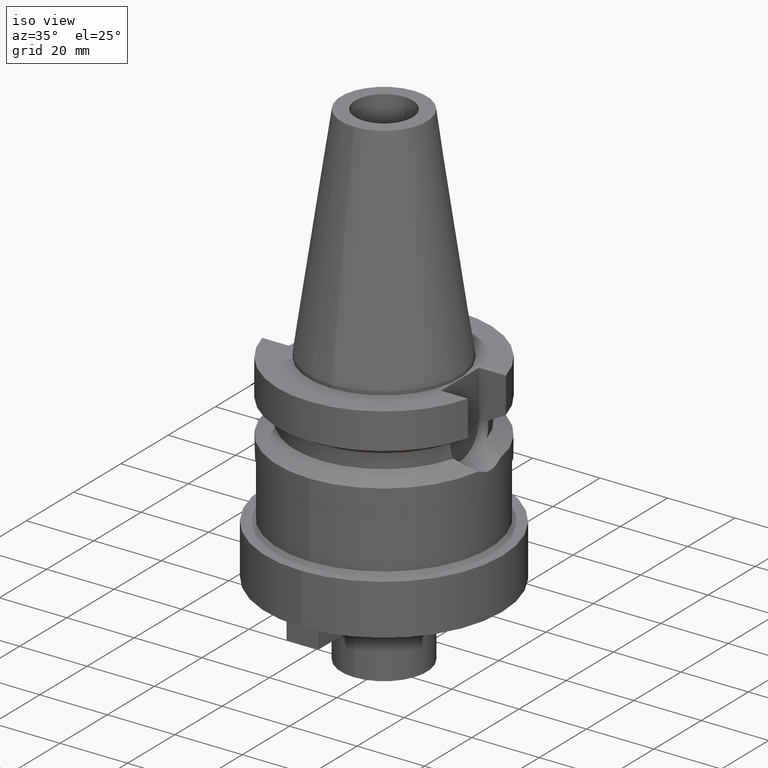
[diagram: clean part render]
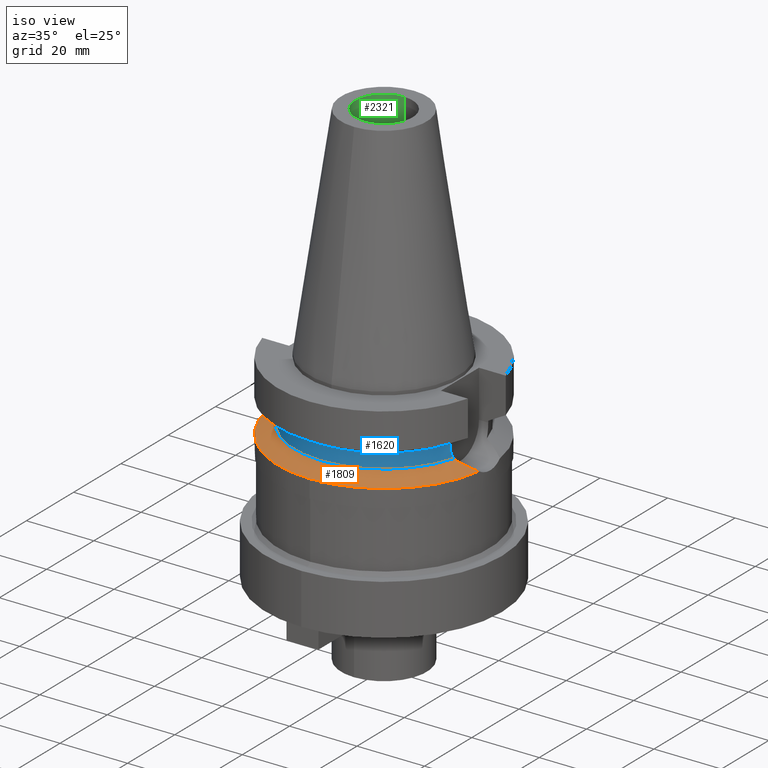
[diagram: same view with three faces highlighted in distinct colors, each labeled with its STEP entity id]
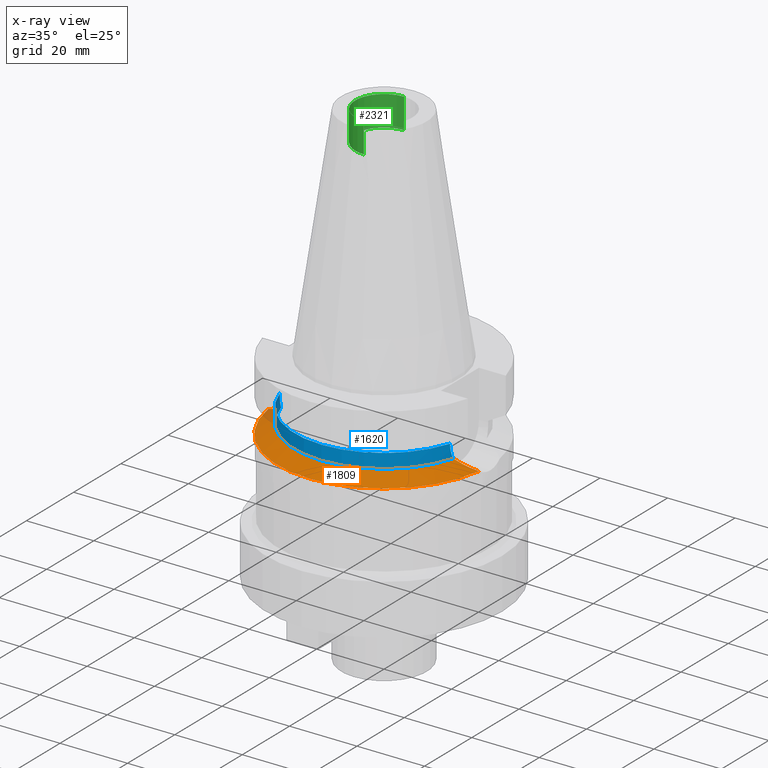
[diagram: x-ray of the same camera — body ghosted, the three highlighted faces saturated]
A machine part, iso view with three faces highlighted in distinct colors.
The next image is the same camera in x-ray (body ghosted, the three faces saturated) — at least one of them is partly hidden behind the body in this view.
Their STEP definitions:

[orange] entity #1809 — the highlighted conical surface has half-angle 60 deg.
#470=CARTESIAN_POINT('',(-3.117899877609E1,-4.485536235554E0,
-2.163449434733E1));
#471=CARTESIAN_POINT('',(-3.092593987235E1,-4.677524091376E0,
-2.150566358777E1));
#472=CARTESIAN_POINT('',(-3.037410202413E1,-5.060393805650E0,
-2.122461249198E1));
#473=CARTESIAN_POINT('',(-2.941095274895E1,-5.616553728736E0,
-2.073352507066E1));
#474=CARTESIAN_POINT('',(-2.829636899056E1,-6.150238386797E0,
-2.016440044336E1));
#475=CARTESIAN_POINT('',(-2.702064262883E1,-6.650758388111E0,
-1.951177345262E1));
#476=CARTESIAN_POINT('',(-2.604760674302E1,-6.956062546166E0,
-1.901276213197E1));
#477=CARTESIAN_POINT('',(-2.553175183775E1,-7.097862220093E0,
-1.874774300139E1));
#482=CARTESIAN_POINT('',(0.E0,0.E0,-1.874774300139E1));
#483=DIRECTION('',(0.E0,0.E0,1.E0));
#484=DIRECTION('',(-9.634623335001E-1,-2.678438573620E-1,0.E0));
#485=AXIS2_PLACEMENT_3D('',#482,#483,#484);
#490=CARTESIAN_POINT('',(0.E0,0.E0,-1.874774300139E1));
#491=DIRECTION('',(0.E0,0.E0,1.E0));
#492=DIRECTION('',(0.E0,-1.E0,0.E0));
#493=AXIS2_PLACEMENT_3D('',#490,#491,#492);
#498=CARTESIAN_POINT('',(0.E0,0.E0,-2.163449434733E1));
#499=DIRECTION('',(0.E0,0.E0,-1.E0));
#500=DIRECTION('',(9.898094849553E-1,-1.423979757319E-1,0.E0));
#501=AXIS2_PLACEMENT_3D('',#498,#499,#500);
#506=CARTESIAN_POINT('',(0.E0,0.E0,-2.163449434733E1));
#507=DIRECTION('',(0.E0,0.E0,-1.E0));
#508=DIRECTION('',(0.E0,-1.E0,0.E0));
#509=AXIS2_PLACEMENT_3D('',#506,#507,#508);
#514=CARTESIAN_POINT('',(3.117899877609E1,-4.485536235554E0,-2.163449434733E1));
#515=CARTESIAN_POINT('',(3.092594282280E1,-4.677521852962E0,-2.150566508982E1));
#516=CARTESIAN_POINT('',(3.037410866244E1,-5.060389796475E0,-2.122461587559E1));
#517=CARTESIAN_POINT('',(2.941094923244E1,-5.616555881648E0,-2.073352327861E1));
#518=CARTESIAN_POINT('',(2.829636038613E1,-6.150242194966E0,-2.016439604719E1));
#519=CARTESIAN_POINT('',(2.702063164435E1,-6.650762164049E0,-1.951176782559E1));
#520=CARTESIAN_POINT('',(2.604760204268E1,-6.956063838208E0,-1.901275971718E1));
#521=CARTESIAN_POINT('',(2.553175183775E1,-7.097862220093E0,-1.874774300139E1));
#540=CARTESIAN_POINT('',(3.117899877609E1,-4.485536235554E0,-2.163449434733E1));
#1358=VERTEX_POINT('',#540);
#1361=CARTESIAN_POINT('',(0.E0,-3.15E1,-2.163449434733E1));
#1362=VERTEX_POINT('',#1361);
#1363=VERTEX_POINT('',#521);
#1374=VERTEX_POINT('',#470);
#1375=VERTEX_POINT('',#477);
#1376=CARTESIAN_POINT('',(0.E0,-2.65E1,-1.874774300139E1));
#1377=VERTEX_POINT('',#1376);
#1793=CARTESIAN_POINT('',(0.E0,0.E0,-2.019111867436E1));
#1794=DIRECTION('',(0.E0,0.E0,-1.E0));
#1795=DIRECTION('',(0.E0,-1.E0,0.E0));
#1796=AXIS2_PLACEMENT_3D('',#1793,#1794,#1795);
#1797=CONICAL_SURFACE('',#1796,2.9E1,6.E1);
#1798=ORIENTED_EDGE('',*,*,#1778,.T.);
#1799=ORIENTED_EDGE('',*,*,#1614,.T.);
#1800=ORIENTED_EDGE('',*,*,#1612,.T.);
#1802=ORIENTED_EDGE('',*,*,#1801,.F.);
#1804=ORIENTED_EDGE('',*,*,#1803,.T.);
#1806=ORIENTED_EDGE('',*,*,#1805,.T.);
#1807=EDGE_LOOP('',(#1798,#1799,#1800,#1802,#1804,#1806));
#1808=FACE_OUTER_BOUND('',#1807,.F.);
#478=B_SPLINE_CURVE_WITH_KNOTS('',3,(#470,#471,#472,#473,#474,#475,#476,#477),
.UNSPECIFIED.,.F.,.F.,(4,1,1,1,1,4),(0.E0,2.E-1,4.E-1,6.E-1,8.E-1,1.E0),
.UNSPECIFIED.);
#486=CIRCLE('',#485,2.65E1);
#494=CIRCLE('',#493,2.65E1);
#502=CIRCLE('',#501,3.15E1);
#510=CIRCLE('',#509,3.15E1);
#522=B_SPLINE_CURVE_WITH_KNOTS('',3,(#514,#515,#516,#517,#518,#519,#520,#521),
.UNSPECIFIED.,.F.,.F.,(4,1,1,1,1,4),(0.E0,2.E-1,4.E-1,6.E-1,8.E-1,1.E0),
.UNSPECIFIED.);
#1612=EDGE_CURVE('',#1377,#1363,#494,.T.);
#1614=EDGE_CURVE('',#1375,#1377,#486,.T.);
#1778=EDGE_CURVE('',#1374,#1375,#478,.T.);
#1801=EDGE_CURVE('',#1358,#1363,#522,.T.);
#1803=EDGE_CURVE('',#1358,#1362,#502,.T.);
#1805=EDGE_CURVE('',#1362,#1374,#510,.T.);
#1809=ADVANCED_FACE('',(#1808),#1797,.T.);

[blue] entity #1620 — the highlighted cylindrical surface (partial cylindrical patch) has radius 26.5 mm, axis along (0, 0, -1).
#217=DIRECTION('',(-2.938235076582E-6,9.215377779673E-6,9.999999999532E-1));
#218=VECTOR('',#217,4.977079540548E-1);
#219=CARTESIAN_POINT('',(-2.524772266958E1,-8.05E0,-1.495E1));
#220=LINE('',#219,#218);
#224=DIRECTION('',(1.014770987065E-6,3.182692094836E-6,-9.999999999944E-1));
#225=VECTOR('',#224,4.977551060849E-1);
#226=CARTESIAN_POINT('',(2.524772216447E1,-8.050001584201E0,-1.445224489392E1));
#227=LINE('',#226,#225);
#231=CARTESIAN_POINT('',(2.524772266958E1,-8.05E0,-1.495E1));
#232=CARTESIAN_POINT('',(2.524772266958E1,-8.05E0,-1.538836624581E1));
#233=CARTESIAN_POINT('',(2.527034454786E1,-7.979590381540E0,-1.625445348786E1));
#234=CARTESIAN_POINT('',(2.536984905223E1,-7.660468139848E0,-1.753893929126E1));
#235=CARTESIAN_POINT('',(2.547272591119E1,-7.310184643694E0,-1.835091906980E1));
#236=CARTESIAN_POINT('',(2.553175183775E1,-7.097862220093E0,-1.874774300139E1));
#241=CARTESIAN_POINT('',(-2.553175183775E1,-7.097862220093E0,
-1.874774300139E1));
#242=CARTESIAN_POINT('',(-2.547274728026E1,-7.310107776912E0,
-1.835106273140E1));
#243=CARTESIAN_POINT('',(-2.536989077647E1,-7.660330327253E0,
-1.753929703371E1));
#244=CARTESIAN_POINT('',(-2.527036887392E1,-7.979514401493E0,
-1.625496268833E1));
#245=CARTESIAN_POINT('',(-2.524772266958E1,-8.05E0,-1.538858569134E1));
#246=CARTESIAN_POINT('',(-2.524772266958E1,-8.05E0,-1.495E1));
#267=CARTESIAN_POINT('',(0.E0,1.065333950388E-14,-1.445225699861E1));
#268=DIRECTION('',(0.E0,0.E0,-1.E0));
#269=DIRECTION('',(9.527442516822E-1,-3.037735849057E-1,0.E0));
#270=AXIS2_PLACEMENT_3D('',#267,#268,#269);
#275=CARTESIAN_POINT('',(0.E0,1.065333950388E-14,-1.445225699861E1));
#276=DIRECTION('',(0.E0,0.E0,-1.E0));
#277=DIRECTION('',(0.E0,-1.E0,0.E0));
#278=AXIS2_PLACEMENT_3D('',#275,#276,#277);
#477=CARTESIAN_POINT('',(-2.553175183775E1,-7.097862220093E0,
-1.874774300139E1));
#482=CARTESIAN_POINT('',(0.E0,0.E0,-1.874774300139E1));
#483=DIRECTION('',(0.E0,0.E0,1.E0));
#484=DIRECTION('',(-9.634623335001E-1,-2.678438573620E-1,0.E0));
#485=AXIS2_PLACEMENT_3D('',#482,#483,#484);
#490=CARTESIAN_POINT('',(0.E0,0.E0,-1.874774300139E1));
#491=DIRECTION('',(0.E0,0.E0,1.E0));
#492=DIRECTION('',(0.E0,-1.E0,0.E0));
#493=AXIS2_PLACEMENT_3D('',#490,#491,#492);
#521=CARTESIAN_POINT('',(2.553175183775E1,-7.097862220093E0,-1.874774300139E1));
#1363=VERTEX_POINT('',#521);
#1364=VERTEX_POINT('',#231);
#1375=VERTEX_POINT('',#477);
#1376=CARTESIAN_POINT('',(0.E0,-2.65E1,-1.874774300139E1));
#1377=VERTEX_POINT('',#1376);
#1389=CARTESIAN_POINT('',(-2.524772266958E1,-8.05E0,-1.495E1));
#1390=VERTEX_POINT('',#1389);
#1391=CARTESIAN_POINT('',(-2.524772413196E1,-8.049995413433E0,
-1.445229204597E1));
#1392=VERTEX_POINT('',#1391);
#1393=CARTESIAN_POINT('',(2.524772266958E1,-8.05E0,-1.445225699861E1));
#1394=CARTESIAN_POINT('',(0.E0,-2.65E1,-1.445225699861E1));
#1395=VERTEX_POINT('',#1393);
#1396=VERTEX_POINT('',#1394);
#1598=CARTESIAN_POINT('',(0.E0,2.115822274887E-14,7.277E1));
#1599=DIRECTION('',(0.E0,0.E0,-1.E0));
#1600=DIRECTION('',(0.E0,-1.E0,0.E0));
#1601=AXIS2_PLACEMENT_3D('',#1598,#1599,#1600);
#1602=CYLINDRICAL_SURFACE('',#1601,2.65E1);
#1603=ORIENTED_EDGE('',*,*,#1585,.T.);
#1605=ORIENTED_EDGE('',*,*,#1604,.F.);
#1607=ORIENTED_EDGE('',*,*,#1606,.F.);
#1609=ORIENTED_EDGE('',*,*,#1608,.T.);
#1611=ORIENTED_EDGE('',*,*,#1610,.T.);
#1613=ORIENTED_EDGE('',*,*,#1612,.F.);
#1615=ORIENTED_EDGE('',*,*,#1614,.F.);
#1617=ORIENTED_EDGE('',*,*,#1616,.T.);
#1618=EDGE_LOOP('',(#1603,#1605,#1607,#1609,#1611,#1613,#1615,#1617));
#1619=FACE_OUTER_BOUND('',#1618,.F.);
#237=B_SPLINE_CURVE_WITH_KNOTS('',3,(#231,#232,#233,#234,#235,#236),
.UNSPECIFIED.,.F.,.F.,(4,1,1,4),(0.E0,3.333333333333E-1,6.666666666667E-1,1.E0),
.UNSPECIFIED.);
#247=B_SPLINE_CURVE_WITH_KNOTS('',3,(#241,#242,#243,#244,#245,#246),
.UNSPECIFIED.,.F.,.F.,(4,1,1,4),(0.E0,3.333333333333E-1,6.666666666667E-1,1.E0),
.UNSPECIFIED.);
#271=CIRCLE('',#270,2.65E1);
#279=CIRCLE('',#278,2.65E1);
#486=CIRCLE('',#485,2.65E1);
#494=CIRCLE('',#493,2.65E1);
#1585=EDGE_CURVE('',#1390,#1392,#220,.T.);
#1604=EDGE_CURVE('',#1396,#1392,#279,.T.);
#1606=EDGE_CURVE('',#1395,#1396,#271,.T.);
#1608=EDGE_CURVE('',#1395,#1364,#227,.T.);
#1610=EDGE_CURVE('',#1364,#1363,#237,.T.);
#1612=EDGE_CURVE('',#1377,#1363,#494,.T.);
#1614=EDGE_CURVE('',#1375,#1377,#486,.T.);
#1616=EDGE_CURVE('',#1375,#1390,#247,.T.);
#1620=ADVANCED_FACE('',(#1619),#1602,.T.);

[green] entity #2321 — the highlighted cylindrical surface (edge-blend (fillet) strip) has radius 8.5 mm, axis along (0, 0, -1).
#42=CARTESIAN_POINT('',(0.E0,2.115822274887E-14,6.54E1));
#43=DIRECTION('',(0.E0,0.E0,1.E0));
#44=DIRECTION('',(0.E0,1.E0,0.E0));
#45=AXIS2_PLACEMENT_3D('',#42,#43,#44);
#1070=CARTESIAN_POINT('',(0.E0,2.115822274887E-14,5.64E1));
#1071=DIRECTION('',(0.E0,0.E0,-1.E0));
#1072=DIRECTION('',(0.E0,-1.E0,0.E0));
#1073=AXIS2_PLACEMENT_3D('',#1070,#1071,#1072);
#1102=DIRECTION('',(0.E0,0.E0,1.E0));
#1103=VECTOR('',#1102,9.E0);
#1104=CARTESIAN_POINT('',(0.E0,-8.5E0,5.64E1));
#1105=LINE('',#1104,#1103);
#1109=DIRECTION('',(0.E0,0.E0,1.E0));
#1110=VECTOR('',#1109,9.E0);
#1111=CARTESIAN_POINT('',(0.E0,8.5E0,5.64E1));
#1112=LINE('',#1111,#1110);
#1260=CARTESIAN_POINT('',(0.E0,-8.5E0,6.54E1));
#1261=CARTESIAN_POINT('',(0.E0,8.5E0,6.54E1));
#1262=VERTEX_POINT('',#1260);
#1263=VERTEX_POINT('',#1261);
#1264=CARTESIAN_POINT('',(0.E0,8.5E0,5.64E1));
#1265=VERTEX_POINT('',#1264);
#1266=CARTESIAN_POINT('',(0.E0,-8.5E0,5.64E1));
#1267=VERTEX_POINT('',#1266);
#2308=CARTESIAN_POINT('',(0.E0,2.115822274887E-14,7.277E1));
#2309=DIRECTION('',(0.E0,0.E0,-1.E0));
#2310=DIRECTION('',(0.E0,-1.E0,0.E0));
#2311=AXIS2_PLACEMENT_3D('',#2308,#2309,#2310);
#2312=CYLINDRICAL_SURFACE('',#2311,8.5E0);
#2314=ORIENTED_EDGE('',*,*,#2313,.F.);
#2315=ORIENTED_EDGE('',*,*,#2297,.F.);
#2317=ORIENTED_EDGE('',*,*,#2316,.T.);
#2318=ORIENTED_EDGE('',*,*,#1470,.F.);
#2319=EDGE_LOOP('',(#2314,#2315,#2317,#2318));
#2320=FACE_OUTER_BOUND('',#2319,.F.);
#46=CIRCLE('',#45,8.5E0);
#1074=CIRCLE('',#1073,8.5E0);
#1470=EDGE_CURVE('',#1263,#1262,#46,.T.);
#2297=EDGE_CURVE('',#1267,#1265,#1074,.T.);
#2313=EDGE_CURVE('',#1265,#1263,#1112,.T.);
#2316=EDGE_CURVE('',#1267,#1262,#1105,.T.);
#2321=ADVANCED_FACE('',(#2320),#2312,.F.);